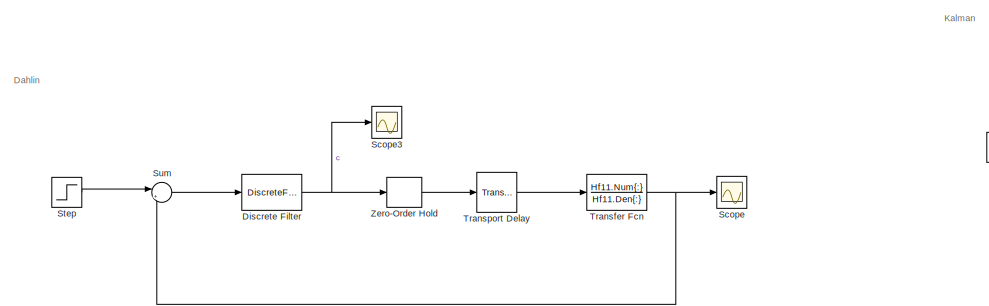
[diagram: root canvas - part 1/2, top left region]
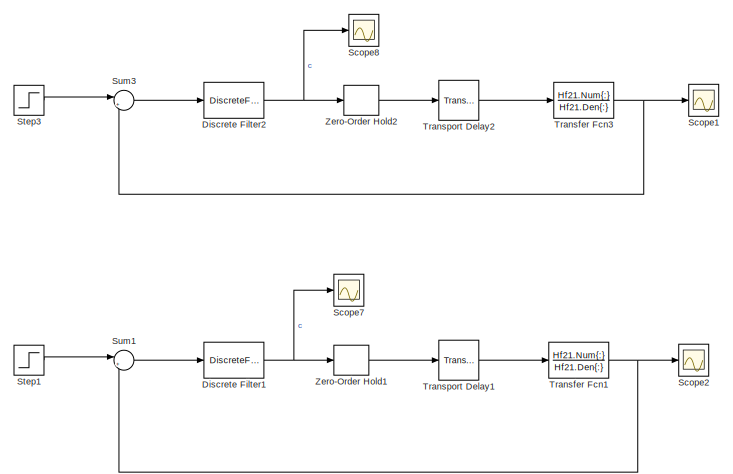
[diagram: root canvas - part 2/2, right side, full height]
MODEL slx_42b2bd7f6794
KIND model
CONFIG AbsTol = auto
CONFIG EnableMultiTasking = off
CONFIG FixedStep = auto
CONFIG MaxStep = auto
CONFIG MinStep = auto
CONFIG RelTol = 1e-3
CONFIG SampleTimeConstraint = Unconstrained
CONFIG SolverName = VariableStepAuto
CONFIG StartTime = 0.0
CONFIG StopTime = 100
BLOCK [DiscreteFilter] Discrete Filter
  Denominator = Hr_filter_dahlin.den{:}
  InputPortMap = u0
  Numerator = Hr_filter_dahlin.num{:}
BLOCK [DiscreteFilter] Discrete Filter1
  Denominator = Hr_filter_kalman.den{:}
  InputPortMap = u0
  Numerator = Hr_filter_kalman.num{:}
BLOCK [DiscreteFilter] Discrete Filter2
  Denominator = Hr_kalman.den{:}
  InputPortMap = u0
  Numerator = Hr_kalman.num{:}
BLOCK [Scope] Scope
  Floating = off
  NumInputPorts = 1
  ScopeSpecificationString = Simulink.scopes.TimeScopeBlockCfg('CurrentConfiguration', extmgr.ConfigurationSet(extmgr.Configuration('Core','General UI',true),extmgr.Configuration('Core','Source UI',true),extmgr.Configuration('Sources','WiredSimulink',true,'DataLoggingVariableName','ScopeData4'),extmgr.Configuration('Visuals','Time Domain',true,'SerializedDisplays',{struct('MinYLimReal','-0.1249','MaxYLimReal','1.12414','YLabe...<+1400ch>
BLOCK [Scope] Scope1
  Floating = off
  NumInputPorts = 1
  ScopeSpecificationString = Simulink.scopes.TimeScopeBlockCfg('CurrentConfiguration', extmgr.ConfigurationSet(extmgr.Configuration('Core','General UI',true),extmgr.Configuration('Core','Source UI',true),extmgr.Configuration('Sources','WiredSimulink',true,'DataLoggingVariableName','ScopeData1'),extmgr.Configuration('Visuals','Time Domain',true,'SerializedDisplays',{struct('MinYLimReal','-0.1251','MaxYLimReal','1.1259','YLabel...<+1426ch>
BLOCK [Scope] Scope2
  Floating = off
  NumInputPorts = 1
  ScopeSpecificationString = Simulink.scopes.TimeScopeBlockCfg('CurrentConfiguration', extmgr.ConfigurationSet(extmgr.Configuration('Core','General UI',true),extmgr.Configuration('Core','Source UI',true),extmgr.Configuration('Sources','WiredSimulink',true,'DataLoggingVariableName','ScopeData2'),extmgr.Configuration('Visuals','Time Domain',true,'SerializedDisplays',{struct('MinYLimReal','-0.1467','MaxYLimReal','1.32026','YLabe...<+1431ch>
BLOCK [Scope] Scope3
  Floating = off
  NumInputPorts = 1
  ScopeSpecificationString = Simulink.scopes.TimeScopeBlockCfg('CurrentConfiguration', extmgr.ConfigurationSet(extmgr.Configuration('Core','General UI',true),extmgr.Configuration('Core','Source UI',true),extmgr.Configuration('Sources','WiredSimulink',true),extmgr.Configuration('Visuals','Time Domain',true),extmgr.Configuration('Tools','Plot Navigation',true),extmgr.Configuration('Tools','Measurements',true)),'Version','2023a'...<+1ch>
BLOCK [Scope] Scope7
  Floating = off
  NumInputPorts = 1
  ScopeSpecificationString = Simulink.scopes.TimeScopeBlockCfg('CurrentConfiguration', extmgr.ConfigurationSet(extmgr.Configuration('Core','General UI',true),extmgr.Configuration('Core','Source UI',true),extmgr.Configuration('Sources','WiredSimulink',true,'DataLoggingVariableName','ScopeData3'),extmgr.Configuration('Visuals','Time Domain',true,'SerializedDisplays',{struct('MinYLimReal','-193.46962','MaxYLimReal','260.67268','...<+1393ch>
BLOCK [Scope] Scope8
  Floating = off
  NumInputPorts = 1
  ScopeSpecificationString = Simulink.scopes.TimeScopeBlockCfg('CurrentConfiguration', extmgr.ConfigurationSet(extmgr.Configuration('Core','General UI',true),extmgr.Configuration('Core','Source UI',true),extmgr.Configuration('Sources','WiredSimulink',true,'DataLoggingVariableName','ScopeData8'),extmgr.Configuration('Visuals','Time Domain',true,'SerializedDisplays',{struct('MinYLimReal','-193.46962','MaxYLimReal','260.67268','...<+1393ch>
BLOCK [Step] Step
  SampleTime = 0
  Time = 0
BLOCK [Step] Step1
  SampleTime = 0
  Time = 0
BLOCK [Step] Step3
  SampleTime = 0
  Time = 0
BLOCK [Sum] Sum
  Inputs = |+-
BLOCK [Sum] Sum1
  Inputs = |+-
BLOCK [Sum] Sum3
  Inputs = |+-
BLOCK [TransferFcn] Transfer Fcn
  Denominator = Hf11.Den{:}
  Numerator = Hf11.Num{:}
BLOCK [TransferFcn] Transfer Fcn1
  Denominator = Hf21.Den{:}
  Numerator = Hf21.Num{:}
BLOCK [TransferFcn] Transfer Fcn3
  Denominator = Hf21.Den{:}
  Numerator = Hf21.Num{:}
BLOCK [TransportDelay] Transport Delay
  DelayTime = 2.5
BLOCK [TransportDelay] Transport Delay1
  DelayTime = 3
BLOCK [TransportDelay] Transport Delay2
  DelayTime = 3
BLOCK [ZeroOrderHold] Zero-Order Hold
  SampleTime = 1/2
BLOCK [ZeroOrderHold] Zero-Order Hold1
  SampleTime = 1/2
BLOCK [ZeroOrderHold] Zero-Order Hold2
  SampleTime = 1/2
ANNOTATION (root): Dahlin
ANNOTATION (root): Kalman
NET Discrete Filter1:1 -> Scope7:1, Zero-Order Hold1:1
NET Discrete Filter2:1 -> Scope8:1, Zero-Order Hold2:1
NET Discrete Filter:1 -> Scope3:1, Zero-Order Hold:1
LINE Step1:1 -> Sum1:1
LINE Step3:1 -> Sum3:1
LINE Step:1 -> Sum:1
LINE Sum1:1 -> Discrete Filter1:1
LINE Sum3:1 -> Discrete Filter2:1
LINE Sum:1 -> Discrete Filter:1
NET Transfer Fcn1:1 -> Scope2:1, Sum1:2
NET Transfer Fcn3:1 -> Scope1:1, Sum3:2
NET Transfer Fcn:1 -> Scope:1, Sum:2
LINE Transport Delay1:1 -> Transfer Fcn1:1
LINE Transport Delay2:1 -> Transfer Fcn3:1
LINE Transport Delay:1 -> Transfer Fcn:1
LINE Zero-Order Hold1:1 -> Transport Delay1:1
LINE Zero-Order Hold2:1 -> Transport Delay2:1
LINE Zero-Order Hold:1 -> Transport Delay:1
note: NET lines group one-source signal fan-out (src -> all destinations, sorted); 1:1 wires keep LINE
